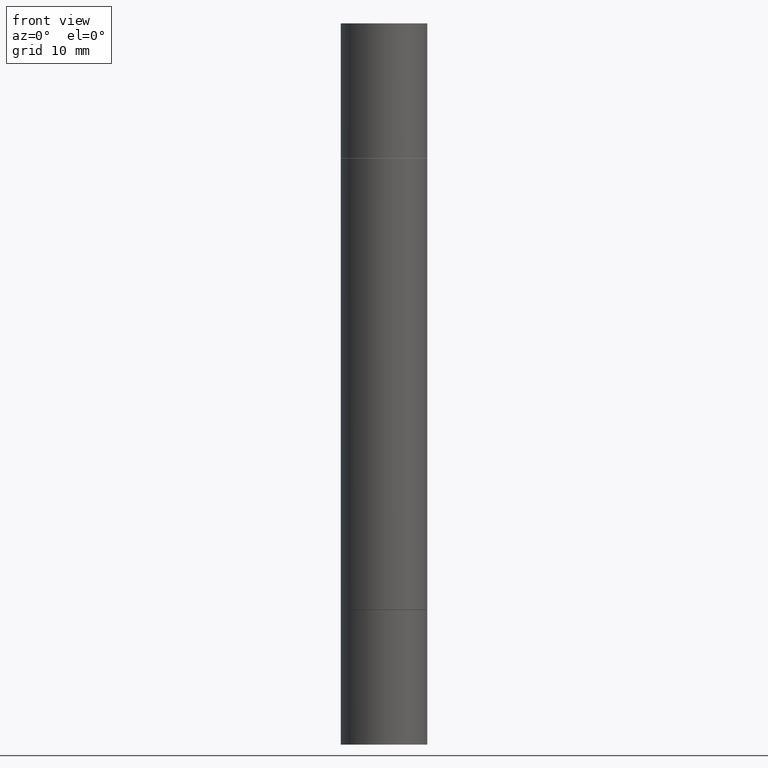
[diagram: clean part render]
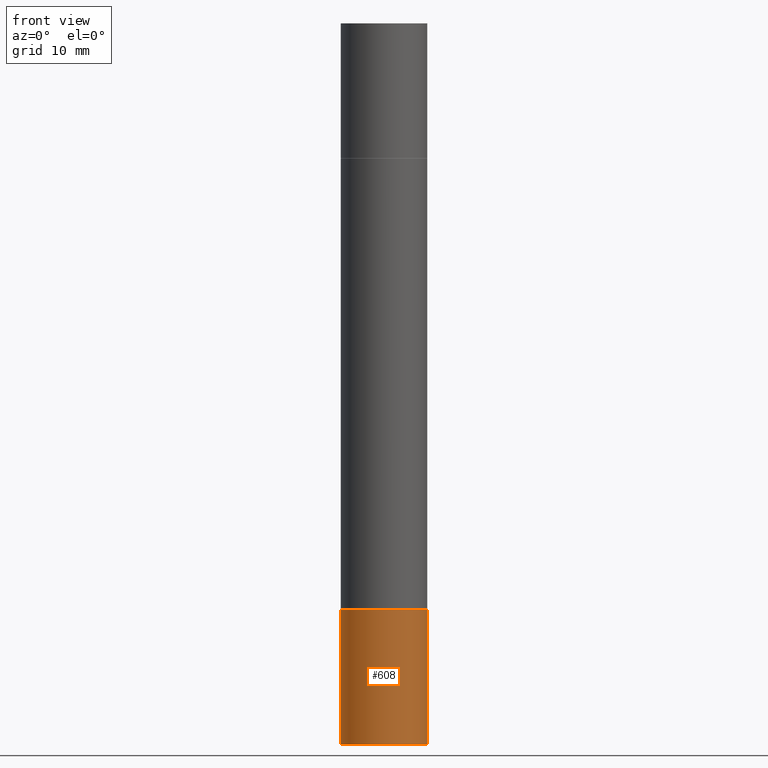
[diagram: same view with one face highlighted and labeled with its STEP entity id]
A machine part, front view. The second image highlights one B-rep face of the part: STEP entity #608.
In plain terms, the highlighted cylindrical surface (partial cylindrical patch) has radius 4.4996 mm, axis along (-0, 0, 1).
Its self-contained STEP definition (entity closure, byte-faithful):
#14 = VERTEX_POINT ( 'NONE', #23 ) ;
#23 = CARTESIAN_POINT ( 'NONE',  ( 0.1771500000000000019, -1.154667793568816250E-14, -2.952799999999999869 ) ) ;
#27 = EDGE_CURVE ( 'NONE', #14, #55, #655, .T. ) ;
#47 = CARTESIAN_POINT ( 'NONE',  ( -0.1771500000000000019, -8.088667383951849417E-15, -2.401599999999999735 ) ) ;
#53 = DIRECTION ( 'NONE',  ( 1.000000000000000000, -6.982962677686266711E-15, 4.876176775795935793E-29 ) ) ;
#55 = VERTEX_POINT ( 'NONE', #549 ) ;
#67 = VERTEX_POINT ( 'NONE', #340 ) ;
#87 = DIRECTION ( 'NONE',  ( 1.000000000000000000, -6.982962677686266711E-15, 0.000000000000000000 ) ) ;
#91 = ORIENTED_EDGE ( 'NONE', *, *, #582, .T. ) ;
#125 = VERTEX_POINT ( 'NONE', #47 ) ;
#127 = CARTESIAN_POINT ( 'NONE',  ( 0.1771500000000000019, -1.237031838352122197E-15, 8.638147158322499960E-30 ) ) ;
#133 = VECTOR ( 'NONE', #500, 39.37007874015748143 ) ;
#137 = DIRECTION ( 'NONE',  ( 1.000000000000000000, -6.982962677686272233E-15, 0.000000000000000000 ) ) ;
#184 = DIRECTION ( 'NONE',  ( -2.445468806185136877E-29, 3.491481338843145188E-15, 1.000000000000000000 ) ) ;
#201 = CIRCLE ( 'NONE', #588, 0.1771500000000000019 ) ;
#215 = EDGE_CURVE ( 'NONE', #125, #55, #201, .T. ) ;
#223 = EDGE_LOOP ( 'NONE', ( #414, #91, #254, #640 ) ) ;
#227 = CARTESIAN_POINT ( 'NONE',  ( 7.220980290903470182E-29, -1.030964609733603853E-14, -2.952799999999999869 ) ) ;
#234 = CARTESIAN_POINT ( 'NONE',  ( -0.1771500000000000019, 1.258726456399017493E-15, -8.713893512386565325E-30 ) ) ;
#249 = DIRECTION ( 'NONE',  ( -2.445468806185136597E-29, 3.491481338843145583E-15, 1.000000000000000000 ) ) ;
#254 = ORIENTED_EDGE ( 'NONE', *, *, #27, .T. ) ;
#289 = LINE ( 'NONE', #234, #133 ) ;
#298 = CIRCLE ( 'NONE', #368, 0.1771500000000000019 ) ;
#340 = CARTESIAN_POINT ( 'NONE',  ( -0.1771500000000000019, -8.088667383951849417E-15, -2.952799999999999869 ) ) ;
#344 = FACE_OUTER_BOUND ( 'NONE', #223, .T. ) ;
#368 = AXIS2_PLACEMENT_3D ( 'NONE', #227, #604, #137 ) ;
#414 = ORIENTED_EDGE ( 'NONE', *, *, #528, .F. ) ;
#421 = VECTOR ( 'NONE', #184, 39.37007874015748143 ) ;
#459 = CARTESIAN_POINT ( 'NONE',  ( 0.000000000000000000, 0.000000000000000000, 0.000000000000000000 ) ) ;
#476 = AXIS2_PLACEMENT_3D ( 'NONE', #459, #249, #53 ) ;
#500 = DIRECTION ( 'NONE',  ( -2.445468806185136877E-29, 3.491481338843145188E-15, 1.000000000000000000 ) ) ;
#528 = EDGE_CURVE ( 'NONE', #67, #125, #289, .T. ) ;
#549 = CARTESIAN_POINT ( 'NONE',  ( 0.1771500000000000019, -9.622173421717819657E-15, -2.401599999999999735 ) ) ;
#552 = CYLINDRICAL_SURFACE ( 'NONE', #476, 0.1771500000000000019 ) ;
#560 = CARTESIAN_POINT ( 'NONE',  ( 5.873037884934223228E-29, -8.385141583365697263E-15, -2.401599999999999735 ) ) ;
#582 = EDGE_CURVE ( 'NONE', #67, #14, #298, .T. ) ;
#588 = AXIS2_PLACEMENT_3D ( 'NONE', #560, #662, #87 ) ;
#604 = DIRECTION ( 'NONE',  ( -2.445468806185136597E-29, 3.491481338843145583E-15, 1.000000000000000000 ) ) ;
#608 = ADVANCED_FACE ( 'NONE', ( #344 ), #552, .T. ) ;
#640 = ORIENTED_EDGE ( 'NONE', *, *, #215, .F. ) ;
#655 = LINE ( 'NONE', #127, #421 ) ;
#662 = DIRECTION ( 'NONE',  ( -2.445468806185136597E-29, 3.491481338843145583E-15, 1.000000000000000000 ) ) ;